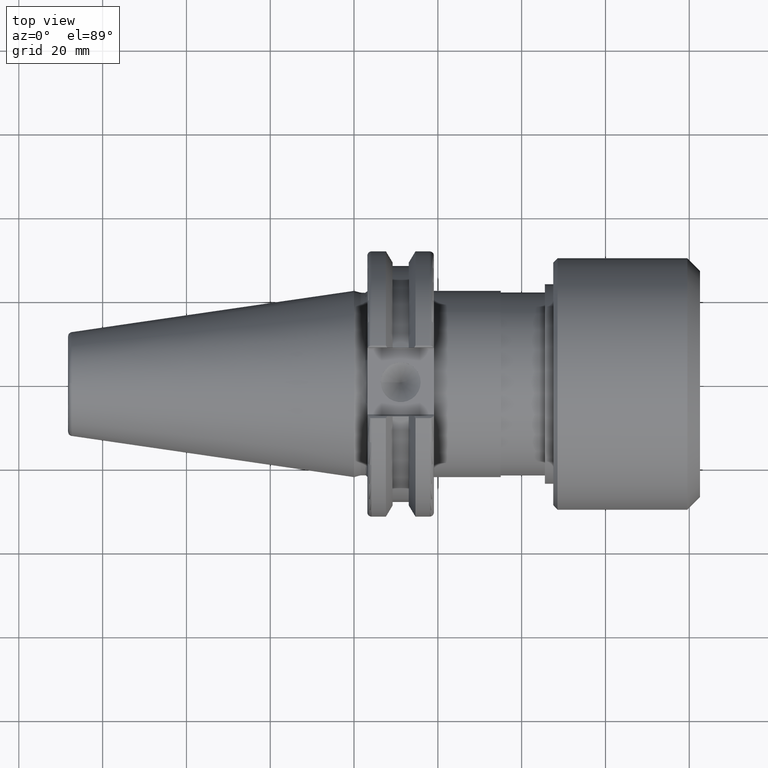
[diagram: clean part render]
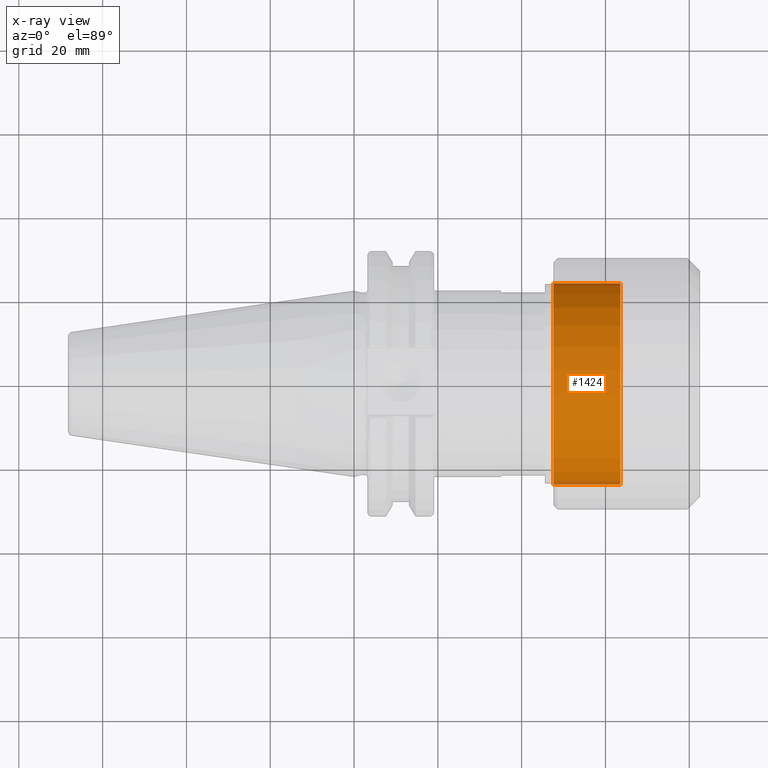
[diagram: x-ray — body ghosted, one internal face saturated and labeled with its STEP entity id]
A machine part, top view, then the same camera in x-ray: the body is ghosted and one INTERNAL B-rep face — a face not visible from any outside direction — is saturated and labeled: STEP entity #1424.
In plain terms, the highlighted cylindrical surface (bore or boss wall) has radius 24 mm, axis along (-1, 0, 0).
Its self-contained STEP definition (entity closure, byte-faithful):
#349=CYLINDRICAL_SURFACE('',#1672,24.);
#416=FACE_OUTER_BOUND('',#498,.T.);
#498=EDGE_LOOP('',(#1322,#1323,#1324,#1325));
#579=LINE('',#2706,#656);
#656=VECTOR('',#2046,24.);
#716=CIRCLE('',#1671,24.);
#717=CIRCLE('',#1673,24.);
#828=VERTEX_POINT('',#2702);
#829=VERTEX_POINT('',#2705);
#994=EDGE_CURVE('',#828,#828,#716,.T.);
#995=EDGE_CURVE('',#828,#829,#579,.T.);
#996=EDGE_CURVE('',#829,#829,#717,.T.);
#1322=ORIENTED_EDGE('',*,*,#994,.F.);
#1323=ORIENTED_EDGE('',*,*,#995,.T.);
#1324=ORIENTED_EDGE('',*,*,#996,.F.);
#1325=ORIENTED_EDGE('',*,*,#995,.F.);
#1424=ADVANCED_FACE('',(#416),#349,.F.);
#1671=AXIS2_PLACEMENT_3D('',#2703,#2042,#2043);
#1672=AXIS2_PLACEMENT_3D('',#2704,#2044,#2045);
#1673=AXIS2_PLACEMENT_3D('',#2707,#2047,#2048);
#2042=DIRECTION('center_axis',(-1.,0.,0.));
#2043=DIRECTION('ref_axis',(0.,0.,1.));
#2044=DIRECTION('center_axis',(-1.,0.,0.));
#2045=DIRECTION('ref_axis',(0.,1.,0.));
#2046=DIRECTION('',(-1.,0.,0.));
#2047=DIRECTION('center_axis',(1.,0.,0.));
#2048=DIRECTION('ref_axis',(0.,1.,0.));
#2702=CARTESIAN_POINT('',(16.,-24.,2.93915231795365E-15));
#2703=CARTESIAN_POINT('Origin',(16.,0.,0.));
#2704=CARTESIAN_POINT('Origin',(8.,0.,0.));
#2705=CARTESIAN_POINT('',(0.,-24.,2.93915231795365E-15));
#2706=CARTESIAN_POINT('',(8.,-24.,2.93915231795365E-15));
#2707=CARTESIAN_POINT('Origin',(0.,0.,0.));